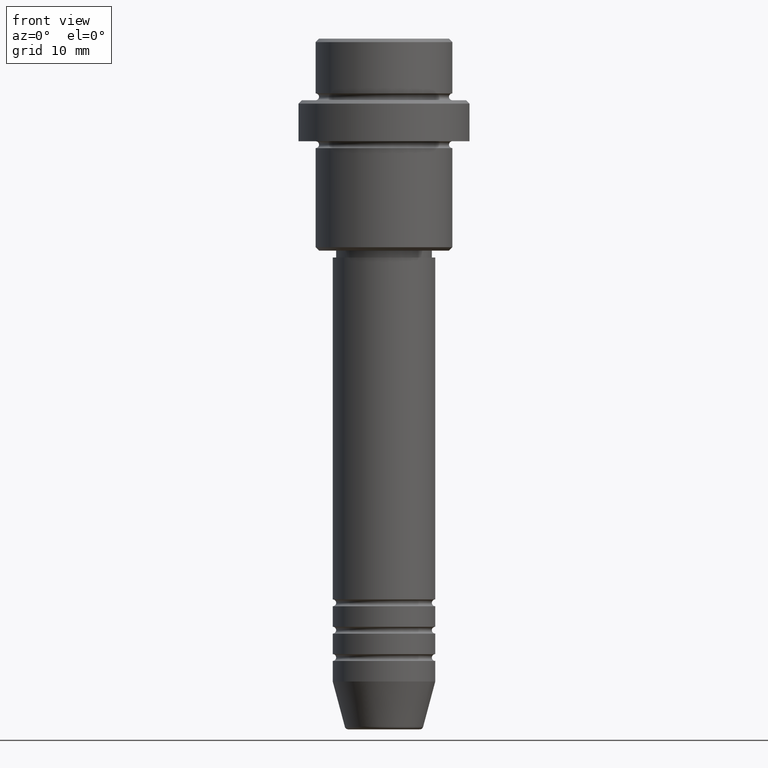
[diagram: clean part render]
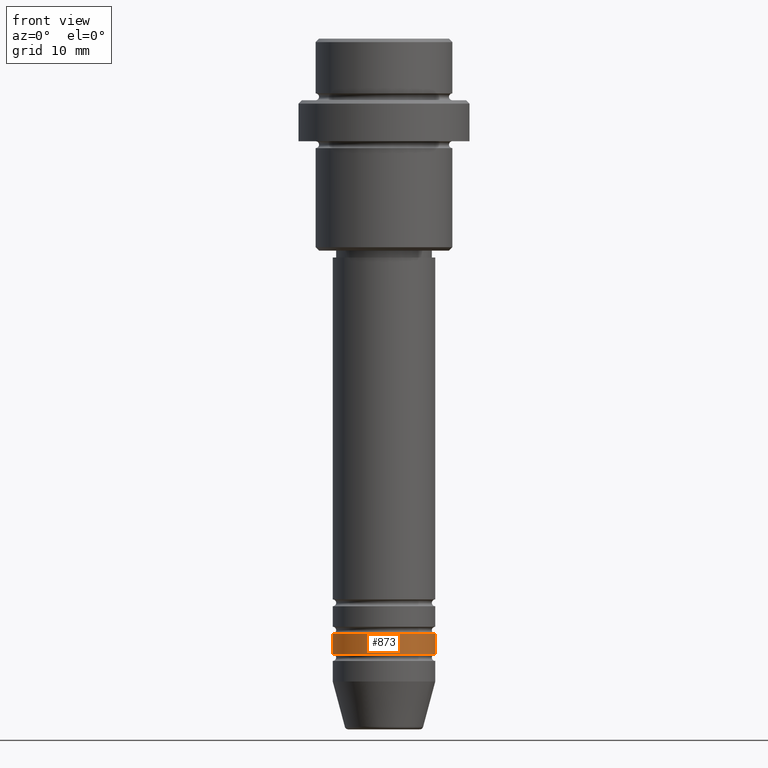
[diagram: same view with one face highlighted and labeled with its STEP entity id]
A machine part, front view. The second image highlights one B-rep face of the part: STEP entity #873.
In plain terms, the highlighted cylindrical surface (partial cylindrical patch) has radius 7.5 mm, axis along (-0, -0, 1).
Its self-contained STEP definition (entity closure, byte-faithful):
#20 = ORIENTED_EDGE ( 'NONE', *, *, #1166, .F. ) ;
#106 = AXIS2_PLACEMENT_3D ( 'NONE', #1162, #919, #364 ) ;
#123 = DIRECTION ( 'NONE',  ( -0.000000000000000000, -0.000000000000000000, 1.000000000000000000 ) ) ;
#137 = LINE ( 'NONE', #568, #191 ) ;
#145 = CARTESIAN_POINT ( 'NONE',  ( -7.500000000000000000, 9.184850993605147944E-16, -86.99999999999988631 ) ) ;
#175 = CARTESIAN_POINT ( 'NONE',  ( 0.000000000000000000, 0.000000000000000000, 0.000000000000000000 ) ) ;
#191 = VECTOR ( 'NONE', #362, 1000.000000000000000 ) ;
#208 = EDGE_CURVE ( 'NONE', #693, #1142, #1068, .T. ) ;
#217 = CARTESIAN_POINT ( 'NONE',  ( 7.500000000000000000, 0.000000000000000000, 0.000000000000000000 ) ) ;
#221 = EDGE_CURVE ( 'NONE', #726, #291, #1250, .T. ) ;
#291 = VERTEX_POINT ( 'NONE', #589 ) ;
#329 = LINE ( 'NONE', #217, #369 ) ;
#362 = DIRECTION ( 'NONE',  ( -0.000000000000000000, -0.000000000000000000, 1.000000000000000000 ) ) ;
#364 = DIRECTION ( 'NONE',  ( 1.000000000000000000, 0.000000000000000000, 0.000000000000000000 ) ) ;
#369 = VECTOR ( 'NONE', #123, 1000.000000000000000 ) ;
#384 = CARTESIAN_POINT ( 'NONE',  ( 0.000000000000000000, 0.000000000000000000, -89.99999999999988631 ) ) ;
#552 = AXIS2_PLACEMENT_3D ( 'NONE', #175, #1187, #610 ) ;
#568 = CARTESIAN_POINT ( 'NONE',  ( -7.500000000000000000, 9.184850993605147944E-16, 0.000000000000000000 ) ) ;
#589 = CARTESIAN_POINT ( 'NONE',  ( 7.500000000000000000, 0.000000000000000000, -86.99999999999988631 ) ) ;
#596 = EDGE_CURVE ( 'NONE', #1142, #291, #329, .T. ) ;
#610 = DIRECTION ( 'NONE',  ( 1.000000000000000000, 0.000000000000000000, 0.000000000000000000 ) ) ;
#684 = CARTESIAN_POINT ( 'NONE',  ( 7.500000000000000000, 0.000000000000000000, -89.99999999999988631 ) ) ;
#693 = VERTEX_POINT ( 'NONE', #1238 ) ;
#706 = ORIENTED_EDGE ( 'NONE', *, *, #596, .T. ) ;
#726 = VERTEX_POINT ( 'NONE', #145 ) ;
#748 = CYLINDRICAL_SURFACE ( 'NONE', #552, 7.500000000000000000 ) ;
#873 = ADVANCED_FACE ( 'NONE', ( #1160 ), #748, .T. ) ;
#919 = DIRECTION ( 'NONE',  ( -0.000000000000000000, -0.000000000000000000, 1.000000000000000000 ) ) ;
#1068 = CIRCLE ( 'NONE', #1339, 7.500000000000000000 ) ;
#1141 = ORIENTED_EDGE ( 'NONE', *, *, #208, .T. ) ;
#1142 = VERTEX_POINT ( 'NONE', #684 ) ;
#1160 = FACE_OUTER_BOUND ( 'NONE', #1330, .T. ) ;
#1162 = CARTESIAN_POINT ( 'NONE',  ( 0.000000000000000000, 0.000000000000000000, -86.99999999999988631 ) ) ;
#1166 = EDGE_CURVE ( 'NONE', #693, #726, #137, .T. ) ;
#1187 = DIRECTION ( 'NONE',  ( -0.000000000000000000, -0.000000000000000000, 1.000000000000000000 ) ) ;
#1238 = CARTESIAN_POINT ( 'NONE',  ( -7.500000000000000000, 9.184850993605147944E-16, -89.99999999999988631 ) ) ;
#1250 = CIRCLE ( 'NONE', #106, 7.500000000000000000 ) ;
#1330 = EDGE_LOOP ( 'NONE', ( #20, #1141, #706, #1349 ) ) ;
#1339 = AXIS2_PLACEMENT_3D ( 'NONE', #384, #1359, #1353 ) ;
#1349 = ORIENTED_EDGE ( 'NONE', *, *, #221, .F. ) ;
#1353 = DIRECTION ( 'NONE',  ( 1.000000000000000000, 0.000000000000000000, 0.000000000000000000 ) ) ;
#1359 = DIRECTION ( 'NONE',  ( -0.000000000000000000, -0.000000000000000000, 1.000000000000000000 ) ) ;